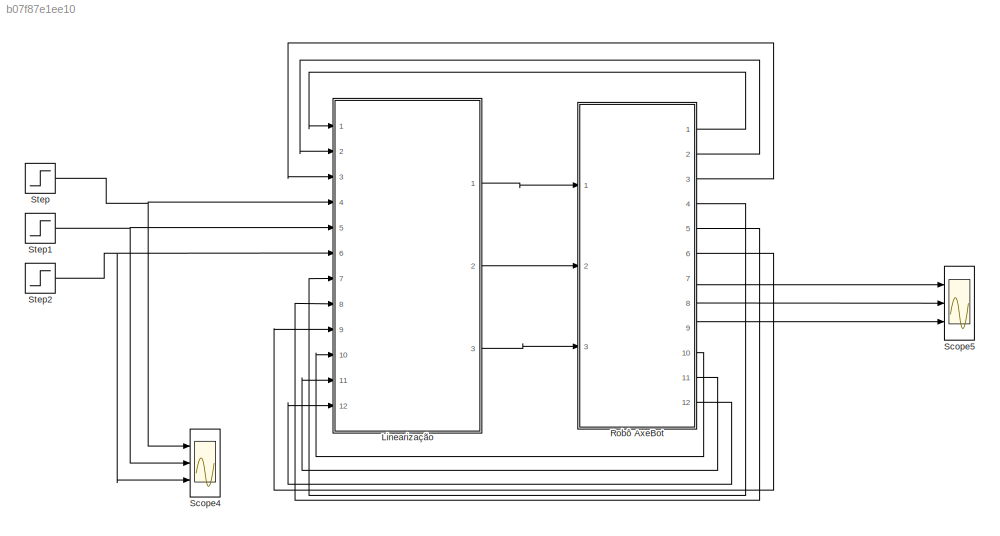
MODEL slx_b07f87e1ee10
KIND model
CONFIG AbsTol = auto
CONFIG EnableMultiTasking = off
CONFIG FixedStep = 0.01
CONFIG MaxStep = auto
CONFIG MinStep = auto
CONFIG RelTol = 1e-3
CONFIG SampleTimeConstraint = Unconstrained
CONFIG Solver = ode5
CONFIG SolverName = ode5
CONFIG StartTime = 0.0
CONFIG StopTime = 100.0
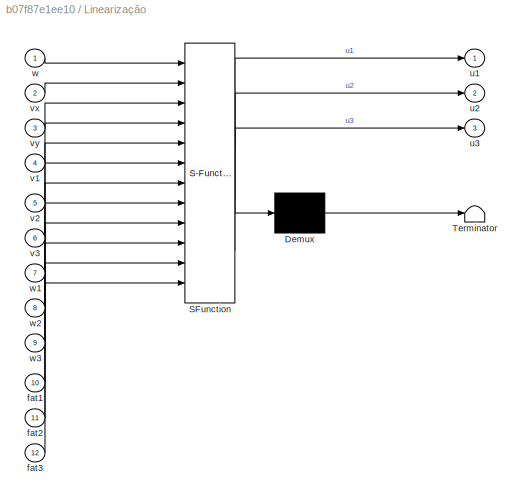
BLOCK [SubSystem] Linearização
  ErrorFcn = Stateflow.Translate.translate
  PermitHierarchicalResolution = ExplicitOnly
  Ports = [12, 3]
  RequestExecContextInheritance = off
  SFBlockType = MATLAB Function
  TreatAsAtomicUnit = on
  Variant = off
BLOCK [Demux] Linearização/ Demux 
  Outputs = 1
  Ports = [1, 1]
BLOCK [S-Function] Linearização/ SFunction 
  EnableBusSupport = on
  FunctionName = sf_sfun
  PortCounts = [12 4]
  Ports = [12, 4]
  SFcnIsStateOwnerBlock = off
  SFunctionDeploymentMode = off
  Tag = Stateflow S-Function Test 11
BLOCK [Terminator] Linearização/ Terminator 
BLOCK [Inport] Linearização/fat1
  IconDisplay = Port number
  Port = 10
BLOCK [Inport] Linearização/fat2
  IconDisplay = Port number
  Port = 11
BLOCK [Inport] Linearização/fat3
  IconDisplay = Port number
  Port = 12
BLOCK [Outport] Linearização/u1
  IconDisplay = Port number
BLOCK [Outport] Linearização/u2
  IconDisplay = Port number
  Port = 2
BLOCK [Outport] Linearização/u3
  IconDisplay = Port number
  Port = 3
BLOCK [Inport] Linearização/v1
  IconDisplay = Port number
  Port = 4
BLOCK [Inport] Linearização/v2
  IconDisplay = Port number
  Port = 5
BLOCK [Inport] Linearização/v3
  IconDisplay = Port number
  Port = 6
BLOCK [Inport] Linearização/vx
  IconDisplay = Port number
  Port = 2
BLOCK [Inport] Linearização/vy
  IconDisplay = Port number
  Port = 3
BLOCK [Inport] Linearização/w
  IconDisplay = Port number
BLOCK [Inport] Linearização/w1
  IconDisplay = Port number
  Port = 7
BLOCK [Inport] Linearização/w2
  IconDisplay = Port number
  Port = 8
BLOCK [Inport] Linearização/w3
  IconDisplay = Port number
  Port = 9
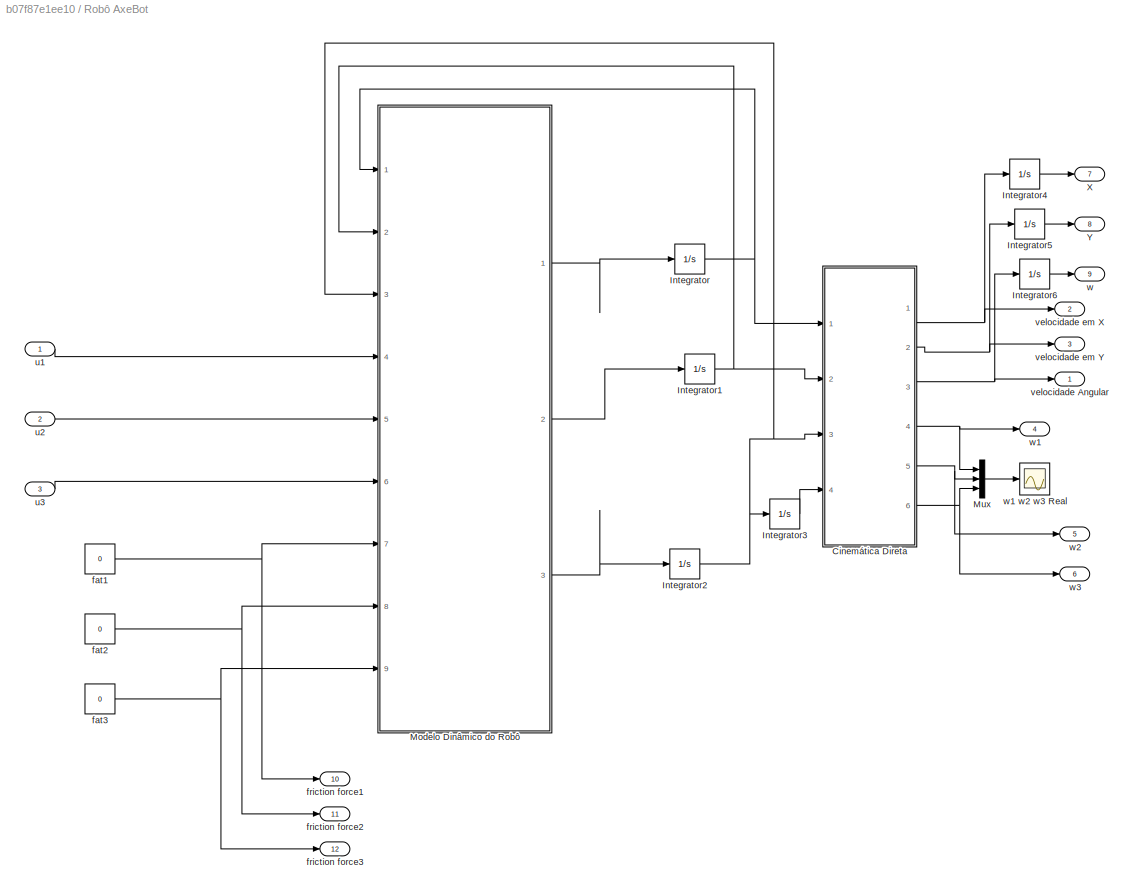
BLOCK [SubSystem] Robô AxeBot
  Ports = [3, 12]
  RequestExecContextInheritance = off
  Variant = off
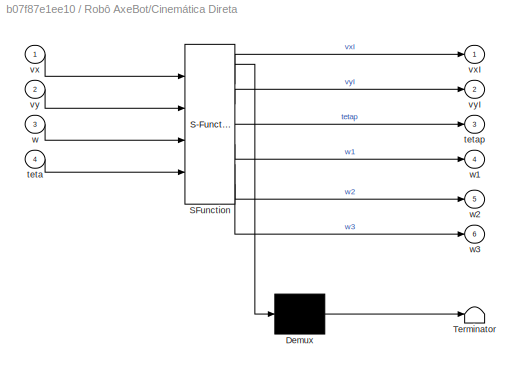
BLOCK [SubSystem] Robô AxeBot/Cinemática Direta
  ErrorFcn = Stateflow.Translate.translate
  PermitHierarchicalResolution = ExplicitOnly
  Ports = [4, 6]
  RequestExecContextInheritance = off
  SFBlockType = MATLAB Function
  TreatAsAtomicUnit = on
  Variant = off
BLOCK [Demux] Robô AxeBot/Cinemática Direta/ Demux 
  Outputs = 1
  Ports = [1, 1]
BLOCK [S-Function] Robô AxeBot/Cinemática Direta/ SFunction 
  EnableBusSupport = on
  FunctionName = sf_sfun
  PortCounts = [4 7]
  Ports = [4, 7]
  SFcnIsStateOwnerBlock = off
  SFunctionDeploymentMode = off
  Tag = Stateflow S-Function Test 8
BLOCK [Terminator] Robô AxeBot/Cinemática Direta/ Terminator 
BLOCK [Inport] Robô AxeBot/Cinemática Direta/teta
  IconDisplay = Port number
  Port = 4
BLOCK [Outport] Robô AxeBot/Cinemática Direta/tetap
  IconDisplay = Port number
  Port = 3
BLOCK [Inport] Robô AxeBot/Cinemática Direta/vx
  IconDisplay = Port number
BLOCK [Outport] Robô AxeBot/Cinemática Direta/vxI
  IconDisplay = Port number
BLOCK [Inport] Robô AxeBot/Cinemática Direta/vy
  IconDisplay = Port number
  Port = 2
BLOCK [Outport] Robô AxeBot/Cinemática Direta/vyI
  IconDisplay = Port number
  Port = 2
BLOCK [Inport] Robô AxeBot/Cinemática Direta/w
  IconDisplay = Port number
  Port = 3
BLOCK [Outport] Robô AxeBot/Cinemática Direta/w1
  IconDisplay = Port number
  Port = 4
BLOCK [Outport] Robô AxeBot/Cinemática Direta/w2
  IconDisplay = Port number
  Port = 5
BLOCK [Outport] Robô AxeBot/Cinemática Direta/w3
  IconDisplay = Port number
  Port = 6
BLOCK [Integrator] Robô AxeBot/Integrator
  Ports = [1, 1]
BLOCK [Integrator] Robô AxeBot/Integrator1
  Ports = [1, 1]
BLOCK [Integrator] Robô AxeBot/Integrator2
  Ports = [1, 1]
BLOCK [Integrator] Robô AxeBot/Integrator3
  Ports = [1, 1]
BLOCK [Integrator] Robô AxeBot/Integrator4
  Ports = [1, 1]
BLOCK [Integrator] Robô AxeBot/Integrator5
  Ports = [1, 1]
BLOCK [Integrator] Robô AxeBot/Integrator6
  Ports = [1, 1]
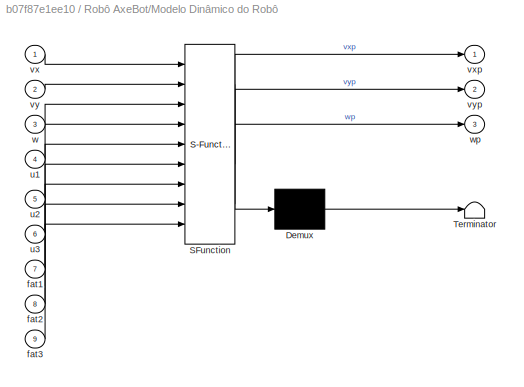
BLOCK [SubSystem] Robô AxeBot/Modelo Dinâmico do Robô
  ErrorFcn = Stateflow.Translate.translate
  PermitHierarchicalResolution = ExplicitOnly
  Ports = [9, 3]
  RequestExecContextInheritance = off
  SFBlockType = MATLAB Function
  TreatAsAtomicUnit = on
  Variant = off
BLOCK [Demux] Robô AxeBot/Modelo Dinâmico do Robô/ Demux 
  Outputs = 1
  Ports = [1, 1]
BLOCK [S-Function] Robô AxeBot/Modelo Dinâmico do Robô/ SFunction 
  EnableBusSupport = on
  FunctionName = sf_sfun
  PortCounts = [9 4]
  Ports = [9, 4]
  SFcnIsStateOwnerBlock = off
  SFunctionDeploymentMode = off
  Tag = Stateflow S-Function Test 2
BLOCK [Terminator] Robô AxeBot/Modelo Dinâmico do Robô/ Terminator 
BLOCK [Inport] Robô AxeBot/Modelo Dinâmico do Robô/fat1
  IconDisplay = Port number
  Port = 7
BLOCK [Inport] Robô AxeBot/Modelo Dinâmico do Robô/fat2
  IconDisplay = Port number
  Port = 8
BLOCK [Inport] Robô AxeBot/Modelo Dinâmico do Robô/fat3
  IconDisplay = Port number
  Port = 9
BLOCK [Inport] Robô AxeBot/Modelo Dinâmico do Robô/u1
  IconDisplay = Port number
  Port = 4
BLOCK [Inport] Robô AxeBot/Modelo Dinâmico do Robô/u2
  IconDisplay = Port number
  Port = 5
BLOCK [Inport] Robô AxeBot/Modelo Dinâmico do Robô/u3
  IconDisplay = Port number
  Port = 6
BLOCK [Inport] Robô AxeBot/Modelo Dinâmico do Robô/vx
  IconDisplay = Port number
BLOCK [Outport] Robô AxeBot/Modelo Dinâmico do Robô/vxp
  IconDisplay = Port number
BLOCK [Inport] Robô AxeBot/Modelo Dinâmico do Robô/vy
  IconDisplay = Port number
  Port = 2
BLOCK [Outport] Robô AxeBot/Modelo Dinâmico do Robô/vyp
  IconDisplay = Port number
  Port = 2
BLOCK [Inport] Robô AxeBot/Modelo Dinâmico do Robô/w
  IconDisplay = Port number
  Port = 3
BLOCK [Outport] Robô AxeBot/Modelo Dinâmico do Robô/wp
  IconDisplay = Port number
  Port = 3
BLOCK [Mux] Robô AxeBot/Mux
  DisplayOption = bar
  Inputs = 3
  Ports = [3, 1]
BLOCK [Outport] Robô AxeBot/X
  IconDisplay = Port number
  Port = 7
BLOCK [Outport] Robô AxeBot/Y
  IconDisplay = Port number
  Port = 8
BLOCK [Constant] Robô AxeBot/fat1
  Value = 0
BLOCK [Constant] Robô AxeBot/fat2
  Value = 0
BLOCK [Constant] Robô AxeBot/fat3
  Value = 0
BLOCK [Outport] Robô AxeBot/friction force1
  IconDisplay = Port number
  Port = 10
BLOCK [Outport] Robô AxeBot/friction force2
  IconDisplay = Port number
  Port = 11
BLOCK [Outport] Robô AxeBot/friction force3
  IconDisplay = Port number
  Port = 12
BLOCK [Inport] Robô AxeBot/u1
  IconDisplay = Port number
BLOCK [Inport] Robô AxeBot/u2
  IconDisplay = Port number
  Port = 2
BLOCK [Inport] Robô AxeBot/u3
  IconDisplay = Port number
  Port = 3
BLOCK [Outport] Robô AxeBot/velocidade Angular
  IconDisplay = Port number
BLOCK [Outport] Robô AxeBot/velocidade em X
  IconDisplay = Port number
  Port = 2
BLOCK [Outport] Robô AxeBot/velocidade em Y
  IconDisplay = Port number
  Port = 3
BLOCK [Outport] Robô AxeBot/w
  IconDisplay = Port number
  Port = 9
BLOCK [Outport] Robô AxeBot/w1
  IconDisplay = Port number
  Port = 4
BLOCK [Scope] Robô AxeBot/w1 w2 w3 Real
  NumInputPorts = 1
  Ports = [1]
  ScopeSpecificationString = C++SS(StrPVP('Location','[5, 46, 1269, 769]'),StrPVP('Open','off'),MxPVP('AxesTitles',24,'struct(''axes1'',''%<SignalLabel>'')'),StrPVP('ShowLegends','off'),StrPVP('YMin','-15'),StrPVP('YMax','20'),StrPVP('SaveName','ScopeData3'),StrPVP('DataFormat','StructureWithTime'),StrPVP('LimitDataPoints','off'),StrPVP('BlockParamSampleTime','0'),StrPVP('Decimation','1'),StrPVP('BlockParamSampleInput','off')...<+1ch>
BLOCK [Outport] Robô AxeBot/w2
  IconDisplay = Port number
  Port = 5
BLOCK [Outport] Robô AxeBot/w3
  IconDisplay = Port number
  Port = 6
BLOCK [Scope] Scope4
  NumInputPorts = 3
  Ports = [3]
  ScopeSpecificationString = Simulink.scopes.TimeScopeBlockCfg('CurrentConfiguration', extmgr.ConfigurationSet(extmgr.Configuration('Core','General UI',true),extmgr.Configuration('Core','Source UI',true),extmgr.Configuration('Sources','WiredSimulink',true,'DataLoggingVariableName','ScopeData1'),extmgr.Configuration('Visuals','Time Domain',true,'SerializedDisplays',{struct('MinYLimReal','-0.125','MaxYLimReal','1.125','YLabelRe...<+1396ch>
BLOCK [Scope] Scope5
  NumInputPorts = 3
  Ports = [3]
  ScopeSpecificationString = Simulink.scopes.TimeScopeBlockCfg('CurrentConfiguration', extmgr.ConfigurationSet(extmgr.Configuration('Core','General UI',true),extmgr.Configuration('Core','Source UI',true),extmgr.Configuration('Sources','WiredSimulink',true,'DataLoggingVariableName','ScopeData2'),extmgr.Configuration('Visuals','Time Domain',true,'SerializedDisplays',{struct('MinYLimReal','-0.0001','MaxYLimReal','0.0001','YLabel...<+2731ch>
BLOCK [Step] Step
  SampleTime = 0
BLOCK [Step] Step1
  SampleTime = 0
BLOCK [Step] Step2
  SampleTime = 0
LINE Linearização:1 -> Robô AxeBot:1
LINE Linearização:2 -> Robô AxeBot:2
LINE Linearização:3 -> Robô AxeBot:3
NET Robô AxeBot/Cinemática Direta:1 -> Robô AxeBot/Integrator4:1, Robô AxeBot/velocidade em X:1
NET Robô AxeBot/Cinemática Direta:2 -> Robô AxeBot/Integrator5:1, Robô AxeBot/velocidade em Y:1
NET Robô AxeBot/Cinemática Direta:3 -> Robô AxeBot/Integrator6:1, Robô AxeBot/velocidade Angular:1
NET Robô AxeBot/Cinemática Direta:4 -> Robô AxeBot/Mux:1, Robô AxeBot/w1:1
NET Robô AxeBot/Cinemática Direta:5 -> Robô AxeBot/Mux:2, Robô AxeBot/w2:1
NET Robô AxeBot/Cinemática Direta:6 -> Robô AxeBot/Mux:3, Robô AxeBot/w3:1
NET Robô AxeBot/Integrator1:1 -> Robô AxeBot/Cinemática Direta:2, Robô AxeBot/Modelo Dinâmico do Robô:2
NET Robô AxeBot/Integrator2:1 -> Robô AxeBot/Cinemática Direta:3, Robô AxeBot/Integrator3:1, Robô AxeBot/Modelo Dinâmico do Robô:3
LINE Robô AxeBot/Integrator3:1 -> Robô AxeBot/Cinemática Direta:4
LINE Robô AxeBot/Integrator4:1 -> Robô AxeBot/X:1
LINE Robô AxeBot/Integrator5:1 -> Robô AxeBot/Y:1
LINE Robô AxeBot/Integrator6:1 -> Robô AxeBot/w:1
NET Robô AxeBot/Integrator:1 -> Robô AxeBot/Cinemática Direta:1, Robô AxeBot/Modelo Dinâmico do Robô:1
LINE Robô AxeBot/Modelo Dinâmico do Robô:1 -> Robô AxeBot/Integrator:1
LINE Robô AxeBot/Modelo Dinâmico do Robô:2 -> Robô AxeBot/Integrator1:1
LINE Robô AxeBot/Modelo Dinâmico do Robô:3 -> Robô AxeBot/Integrator2:1
LINE Robô AxeBot/Mux:1 -> Robô AxeBot/w1 w2 w3 Real:1
NET Robô AxeBot/fat1:1 -> Robô AxeBot/Modelo Dinâmico do Robô:7, Robô AxeBot/friction force1:1
NET Robô AxeBot/fat2:1 -> Robô AxeBot/Modelo Dinâmico do Robô:8, Robô AxeBot/friction force2:1
NET Robô AxeBot/fat3:1 -> Robô AxeBot/Modelo Dinâmico do Robô:9, Robô AxeBot/friction force3:1
LINE Robô AxeBot/u1:1 -> Robô AxeBot/Modelo Dinâmico do Robô:4
LINE Robô AxeBot/u2:1 -> Robô AxeBot/Modelo Dinâmico do Robô:5
LINE Robô AxeBot/u3:1 -> Robô AxeBot/Modelo Dinâmico do Robô:6
LINE Robô AxeBot:1 -> Linearização:1
LINE Robô AxeBot:10 -> Linearização:10
LINE Robô AxeBot:11 -> Linearização:11
LINE Robô AxeBot:12 -> Linearização:12
LINE Robô AxeBot:2 -> Linearização:2
LINE Robô AxeBot:3 -> Linearização:3
LINE Robô AxeBot:4 -> Linearização:7
LINE Robô AxeBot:5 -> Linearização:8
LINE Robô AxeBot:6 -> Linearização:9
LINE Robô AxeBot:7 -> Scope5:1
LINE Robô AxeBot:8 -> Scope5:2
LINE Robô AxeBot:9 -> Scope5:3
NET Step1:1 -> Linearização:5, Scope4:2
NET Step2:1 -> Linearização:6, Scope4:3
NET Step:1 -> Linearização:4, Scope4:1
note: NET lines group one-source signal fan-out (src -> all destinations, sorted); 1:1 wires keep LINE
CHART Robô AxeBot/Modelo Dinâmico do Robô states=1 transitions=1
  STATE_LABEL 'eML_blk_kernel()'
  STATE_LABEL 'SCRIPT:\nfunction [vxp,vyp,wp] = MDRobo(vx,vy,w,u1,u2,u3,fat1,fat2,fat3)\n\nN=19; %Fator de redução de velocidade (admensional)\neta=0.83; %Eficiencia mecanica do acoplamento (admensional)\nkt=0.0059; %Constante de torque Nm/A\nkem=0.0059;  %Constante de força contra-eletromotriz Volt s/rad\nJm=3.88e-7; % Inercia do atuador 3 em Kilogramos-metros^2 kgm^2\nJ=2.125; % Inercia da base movel em Kilogramos-met...<+592ch>'
CHART Robô AxeBot/Cinemática Direta states=1 transitions=1
  STATE_LABEL 'eML_blk_kernel()'
  STATE_LABEL 'SCRIPT:\nfunction [vxI,vyI,tetap,w1,w2,w3] = CD(vx,vy,w,teta)\n% This block supports an embeddable subset of the MATLAB language.\n% See the help menu for details.\nN=19; %Fator de redução de velocidade (admensional)\neta=0.83; %Eficiencia mecanica do acoplamento (admensional)\nl=0.09; %Distancia do centro da base móvel ao centro da roda 3 metros m\nrw=0.072; %Raio de cada roda 3 metros m\nB = [0 cos(pi/6...<+218ch>'
CHART Linearização states=1 transitions=1
  STATE_LABEL 'eML_blk_kernel()'
  STATE_LABEL 'SCRIPT:\nfunction [u1,u2,u3] = LinearizacaoEE(w,vx,vy,v1,v2,v3,w1,w2,w3,fat1,fat2,fat3)\n\nN=19; %Fator de redução de velocidade (admensional)\neta=0.83; %Eficiencia mecanica do acoplamento (admensional)\nkt=0.0059; %Constante de torque Nm/A\nkem=0.0059;  %Constante de força contra-eletromotriz Volt s/rad\nJm=3.88e-7; % Inercia do atuador 3 em Kilogramos-metros^2 kgm^2\nJ=2.125; % Inercia da base movel em...<+647ch>'
